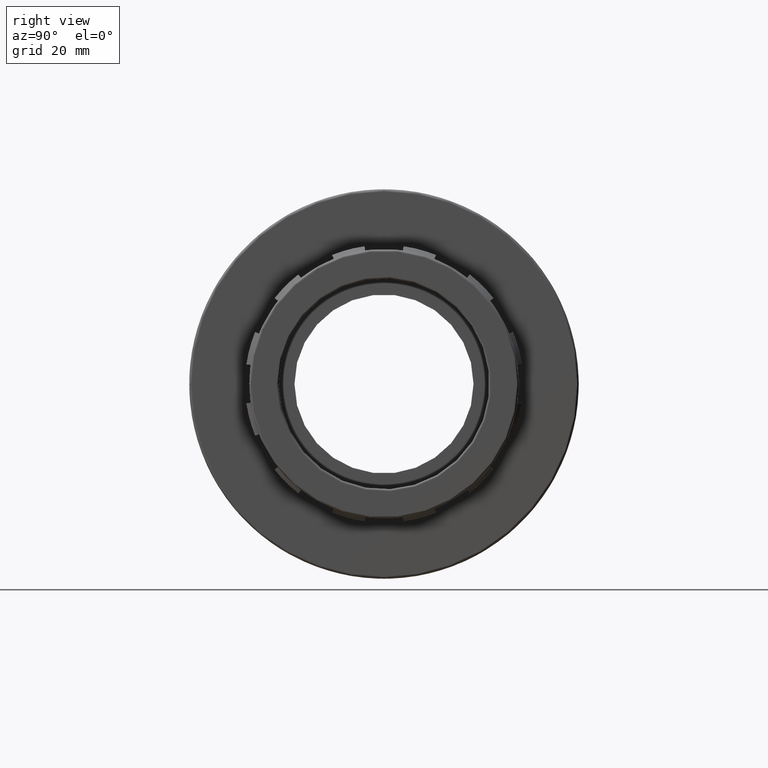
[diagram: clean part render]
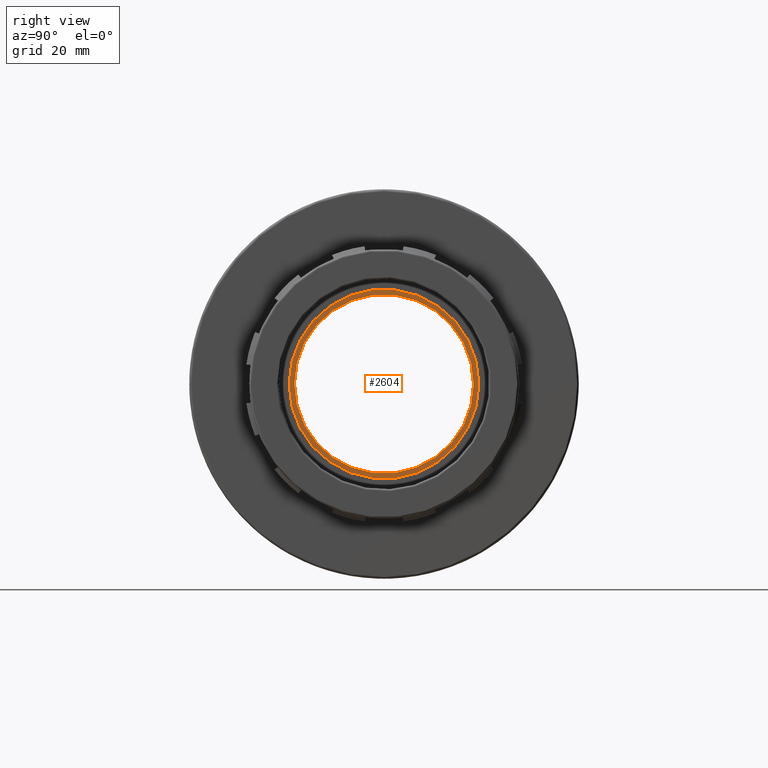
[diagram: same view with one face highlighted and labeled with its STEP entity id]
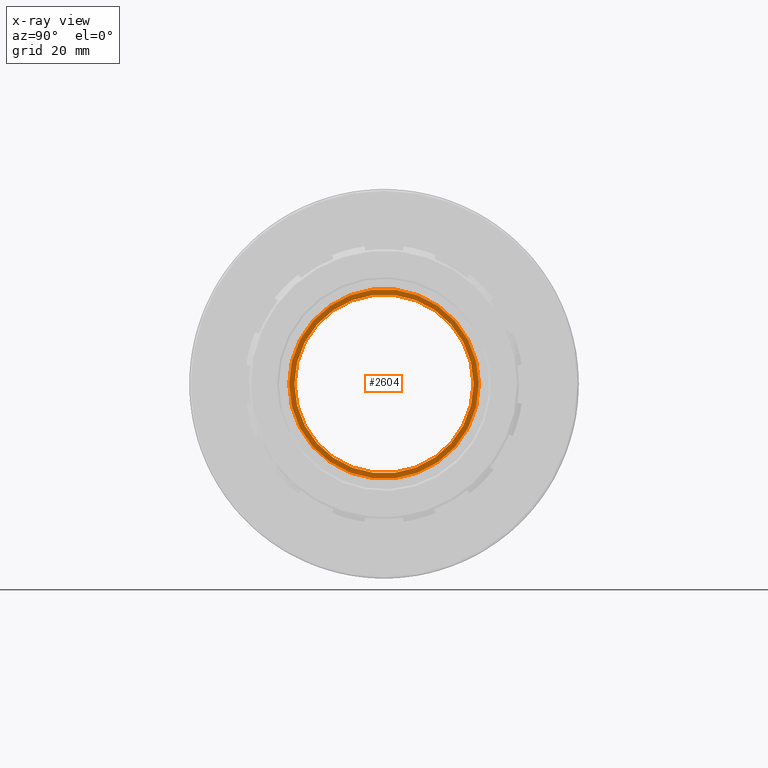
[diagram: x-ray of the same camera — body ghosted, the highlighted face saturated]
A machine part, right view. The second image highlights one B-rep face of the part: STEP entity #2604.
The next image is the same camera in x-ray: the body ghosted, the highlighted face saturated — about 0% of this face is hidden behind the body in this view.
In plain terms, the highlighted planar face has unit normal (1, 0, 0).
Its self-contained STEP definition (entity closure, byte-faithful):
#67=FACE_BOUND('',#517,.T.);
#219=CIRCLE('',#2874,16.5546);
#220=CIRCLE('',#2876,17.5284);
#358=FACE_OUTER_BOUND('',#516,.T.);
#516=EDGE_LOOP('',(#2369));
#517=EDGE_LOOP('',(#2370));
#1260=VERTEX_POINT('',#4426);
#1261=VERTEX_POINT('',#4429);
#1633=EDGE_CURVE('',#1260,#1260,#219,.T.);
#1634=EDGE_CURVE('',#1261,#1261,#220,.T.);
#2369=ORIENTED_EDGE('',*,*,#1634,.F.);
#2370=ORIENTED_EDGE('',*,*,#1633,.T.);
#2465=PLANE('',#2875);
#2604=ADVANCED_FACE('',(#358,#67),#2465,.T.);
#2874=AXIS2_PLACEMENT_3D('',#4427,#3653,#3654);
#2875=AXIS2_PLACEMENT_3D('',#4428,#3655,#3656);
#2876=AXIS2_PLACEMENT_3D('',#4430,#3657,#3658);
#3653=DIRECTION('center_axis',(-1.,-1.83697019872103E-16,0.));
#3654=DIRECTION('ref_axis',(0.,0.,1.));
#3655=DIRECTION('center_axis',(1.,1.83697019872103E-16,0.));
#3656=DIRECTION('ref_axis',(0.,0.,-1.));
#3657=DIRECTION('center_axis',(-1.,-1.83697019872103E-16,0.));
#3658=DIRECTION('ref_axis',(0.,0.,1.));
#4426=CARTESIAN_POINT('',(18.1,-16.5546,0.));
#4427=CARTESIAN_POINT('Origin',(18.1,1.14994334439936E-14,0.));
#4428=CARTESIAN_POINT('Origin',(18.1,-17.5284,0.));
#4429=CARTESIAN_POINT('',(18.1,-17.5284,0.));
#4430=CARTESIAN_POINT('Origin',(18.1,1.14994334439936E-14,0.));